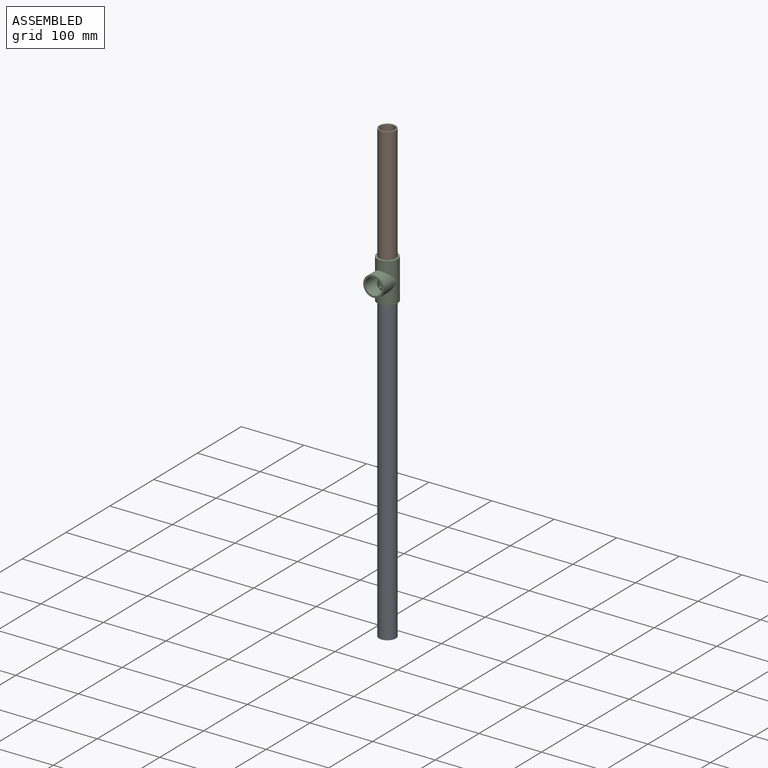
[diagram: assembled view]
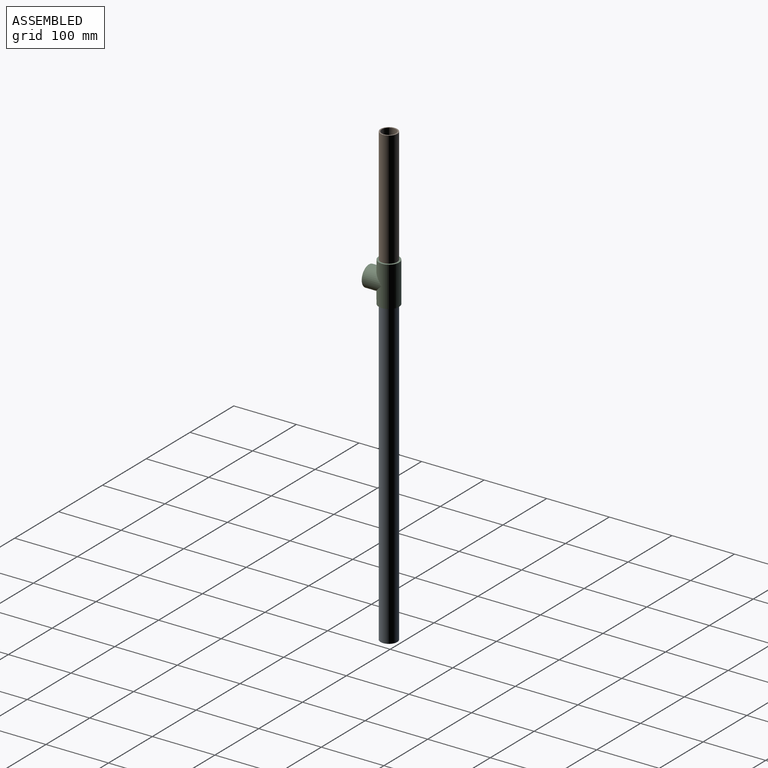
[diagram: assembled view, second angle]
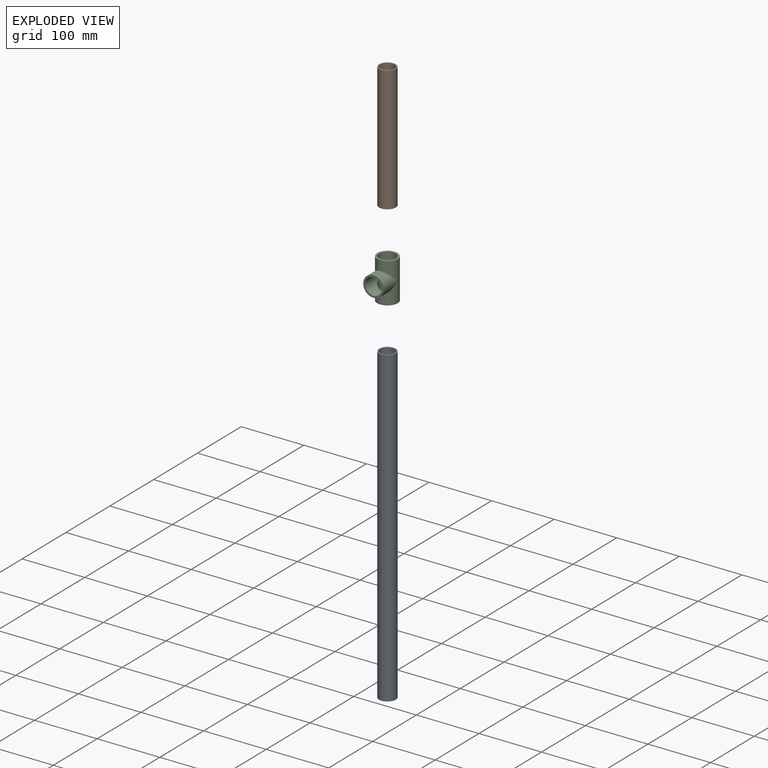
[diagram: exploded view]
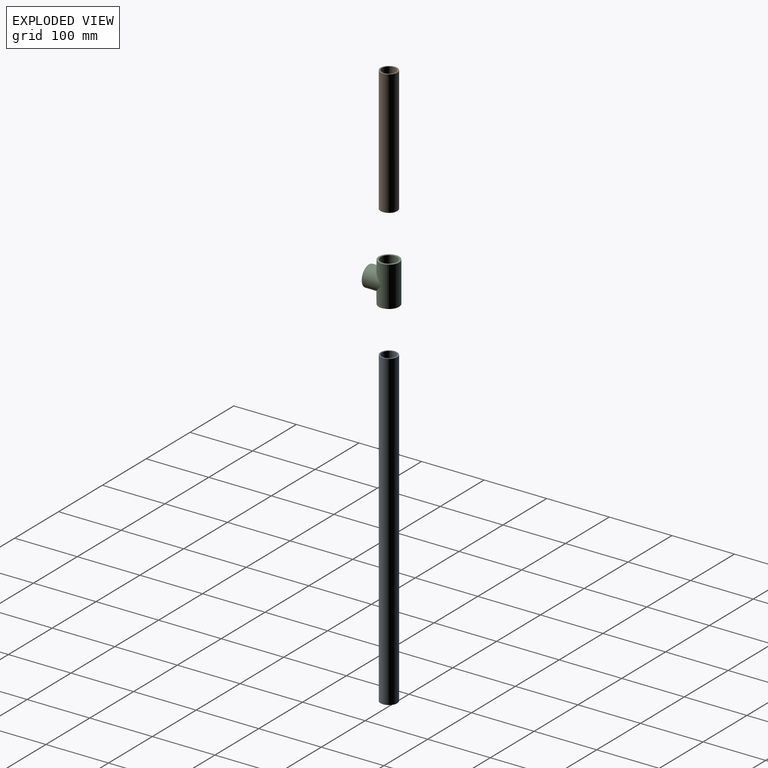
[diagram: exploded view, second angle]
ASSEMBLY  parts=3 mates=2
PART A: 4 faces, bbox 26.7x500x26.7 mm
  f0: cylinder r=11.35mm len=500mm, axis (0,1,0), area 35657.1mm2, adj f2,f3
  f1: cylinder r=13.35mm len=500mm, axis (0,1,0), area 41940.3mm2, adj f2,f3
  f2: plane 26.7x26.7mm, normal (0,-1,0), area 155.2mm2, adj f0,f1
  f3: plane 26.7x26.7mm, normal (0,1,0), area 155.2mm2, adj f0,f1
PART B: 4 faces, bbox 26.7x200x26.7 mm
  f0: cylinder r=11.35mm len=200mm, axis (0,1,0), area 14262.8mm2, adj f2,f3
  f1: cylinder r=13.35mm len=200mm, axis (0,1,0), area 16776.1mm2, adj f2,f3
  f2: plane 26.7x26.7mm, normal (0,-1,0), area 155.2mm2, adj f0,f1
  f3: plane 26.7x26.7mm, normal (0,1,0), area 155.2mm2, adj f0,f1
PART C: 7 faces, bbox 32.7x64x48.4 mm
  f0: cylinder r=13.35mm len=64mm, axis (0,-1,0), area 4655.5mm2, adj f2,f3,f6
  f1: cylinder r=16.35mm len=64mm, axis (0,1,0), area 5505.4mm2, adj f2,f3,f4
  f2: plane 32.7x32.7mm, normal (0,-1,0), area 279.9mm2, adj f0,f1
  f3: plane 32.7x32.7mm, normal (0,1,0), area 279.9mm2, adj f0,f1
  f4: cylinder r=16.35mm len=32.7mm, axis (0,0,-1), area 2218.1mm2, adj f1,f5
  f5: plane 32.7x32.7mm, normal (0,0,1), area 279.9mm2, adj f4,f6
  f6: cylinder r=13.35mm len=32mm, axis (0,0,-1), area 1971.3mm2, adj f0,f5
PLACE A rot(axis=(1,0,0),90deg) t=(-148.89,-96.17,57.74)mm
PLACE B rot(axis=(1,0,0),90deg) t=(-148.89,-96.17,291.74)mm
PLACE C rot(axis=(1,0,0),90deg) t=(-148.89,-96.17,74.74)mm
MATE revolute C.f0 <-> A.f0  axis (0,0,-1) through (-148.89,-96.17,42.74)mm
MATE revolute B.f0 <-> C.f0  axis (0,0,1) through (-148.89,-96.17,91.74)mm
